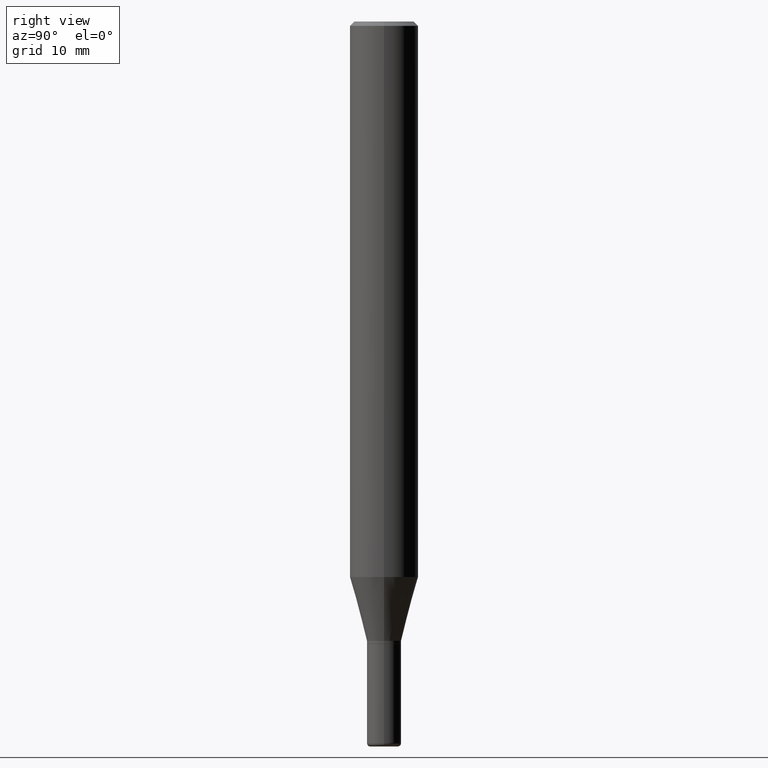
[diagram: clean part render]
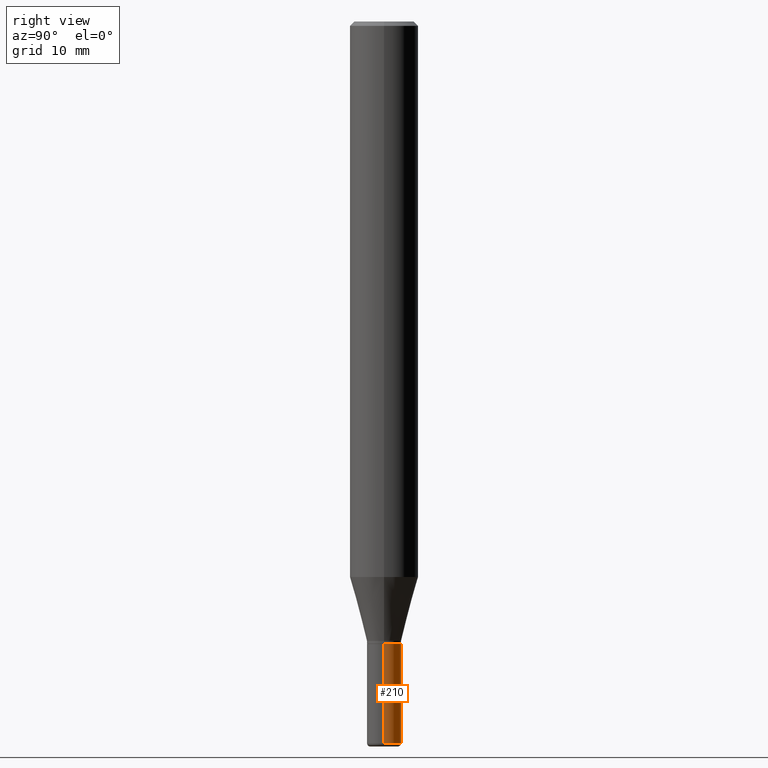
[diagram: same view with one face highlighted and labeled with its STEP entity id]
A machine part, right view. The second image highlights one B-rep face of the part: STEP entity #210.
In plain terms, the highlighted cylindrical surface (edge-blend (fillet) strip) has radius 1.4999 mm, axis along (-0, 0, 1).
Its self-contained STEP definition (entity closure, byte-faithful):
#9 = ORIENTED_EDGE ( 'NONE', *, *, #379, .F. ) ;
#13 = AXIS2_PLACEMENT_3D ( 'NONE', #356, #517, #236 ) ;
#33 = DIRECTION ( 'NONE',  ( -2.445468806185136877E-29, 3.491481338843145188E-15, 1.000000000000000000 ) ) ;
#44 = CARTESIAN_POINT ( 'NONE',  ( 0.05905000000000033833, -9.099847813426891590E-15, -2.488199999999999967 ) ) ;
#72 = CARTESIAN_POINT ( 'NONE',  ( -0.05905000000000017180, 4.195754854663403804E-16, -2.904631170795530300E-30 ) ) ;
#86 = DIRECTION ( 'NONE',  ( -2.445468806185136597E-29, 3.491481338843145583E-15, 1.000000000000000000 ) ) ;
#101 = VECTOR ( 'NONE', #288, 39.37007874015748143 ) ;
#111 = VERTEX_POINT ( 'NONE', #346 ) ;
#186 = EDGE_LOOP ( 'NONE', ( #277, #208, #515, #9 ) ) ;
#199 = CARTESIAN_POINT ( 'NONE',  ( 5.247242417431447608E-29, -7.491671508755737816E-15, -2.145700000000000163 ) ) ;
#204 = CARTESIAN_POINT ( 'NONE',  ( 0.05905000000000017180, -4.123439461173752653E-16, 2.879382386107508278E-30 ) ) ;
#208 = ORIENTED_EDGE ( 'NONE', *, *, #257, .T. ) ;
#210 = ADVANCED_FACE ( 'NONE', ( #339 ), #302, .T. ) ;
#232 = VERTEX_POINT ( 'NONE', #44 ) ;
#236 = DIRECTION ( 'NONE',  ( 1.000000000000000000, -6.982962677686265922E-15, 0.000000000000000000 ) ) ;
#243 = LINE ( 'NONE', #72, #337 ) ;
#245 = CARTESIAN_POINT ( 'NONE',  ( -0.05905000000000033833, -7.670012202566284200E-15, -2.488199999999999967 ) ) ;
#246 = DIRECTION ( 'NONE',  ( 1.000000000000000000, -6.982962677686266711E-15, 4.876176775795935232E-29 ) ) ;
#253 = DIRECTION ( 'NONE',  ( 1.000000000000000000, -6.982962677686273021E-15, 0.000000000000000000 ) ) ;
#257 = EDGE_CURVE ( 'NONE', #443, #371, #243, .T. ) ;
#277 = ORIENTED_EDGE ( 'NONE', *, *, #294, .T. ) ;
#288 = DIRECTION ( 'NONE',  ( -2.445468806185136877E-29, 3.491481338843145188E-15, 1.000000000000000000 ) ) ;
#294 = EDGE_CURVE ( 'NONE', #232, #443, #429, .T. ) ;
#302 = CYLINDRICAL_SURFACE ( 'NONE', #422, 0.05905000000000017180 ) ;
#329 = CARTESIAN_POINT ( 'NONE',  ( -0.05904999999999999832, -7.670012202566285777E-15, -2.145700000000000163 ) ) ;
#337 = VECTOR ( 'NONE', #33, 39.37007874015748143 ) ;
#339 = FACE_OUTER_BOUND ( 'NONE', #186, .T. ) ;
#346 = CARTESIAN_POINT ( 'NONE',  ( 0.05904999999999999832, -7.904015454873111947E-15, -2.145700000000000163 ) ) ;
#356 = CARTESIAN_POINT ( 'NONE',  ( 6.084815483549856310E-29, -8.687503867309514303E-15, -2.488199999999999967 ) ) ;
#371 = VERTEX_POINT ( 'NONE', #329 ) ;
#379 = EDGE_CURVE ( 'NONE', #232, #111, #442, .T. ) ;
#380 = CIRCLE ( 'NONE', #469, 0.05904999999999999832 ) ;
#422 = AXIS2_PLACEMENT_3D ( 'NONE', #452, #493, #246 ) ;
#429 = CIRCLE ( 'NONE', #13, 0.05905000000000033833 ) ;
#442 = LINE ( 'NONE', #204, #101 ) ;
#443 = VERTEX_POINT ( 'NONE', #245 ) ;
#452 = CARTESIAN_POINT ( 'NONE',  ( 0.000000000000000000, 0.000000000000000000, 0.000000000000000000 ) ) ;
#469 = AXIS2_PLACEMENT_3D ( 'NONE', #199, #86, #253 ) ;
#488 = EDGE_CURVE ( 'NONE', #111, #371, #380, .T. ) ;
#493 = DIRECTION ( 'NONE',  ( -2.445468806185136597E-29, 3.491481338843145583E-15, 1.000000000000000000 ) ) ;
#515 = ORIENTED_EDGE ( 'NONE', *, *, #488, .F. ) ;
#517 = DIRECTION ( 'NONE',  ( -2.445468806185136597E-29, 3.491481338843145583E-15, 1.000000000000000000 ) ) ;